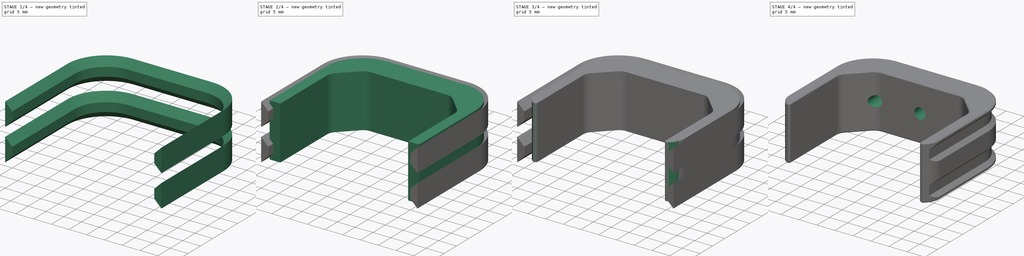
[diagram: build sequence overview — one tinted view per stage of 4, left to right]
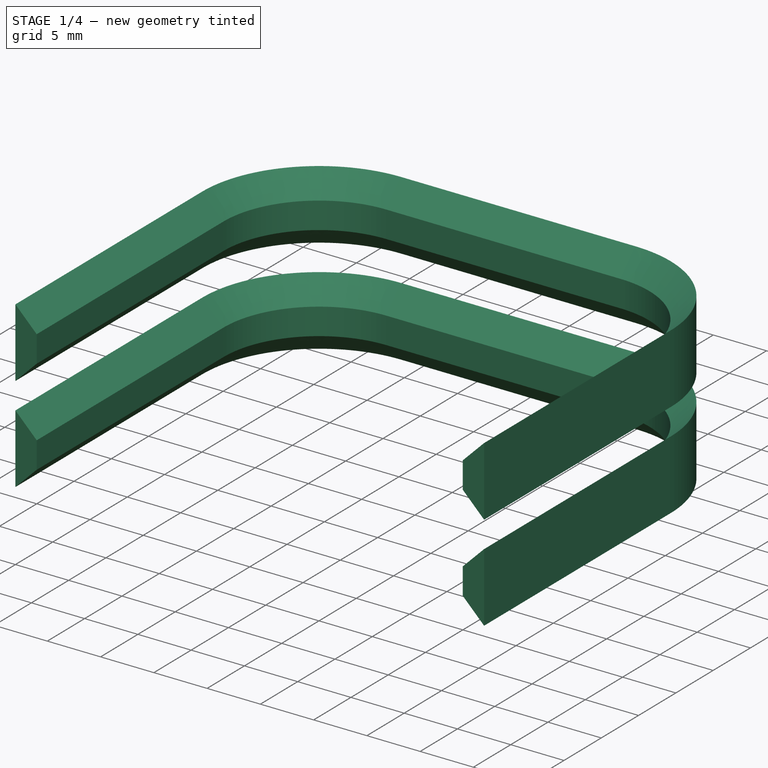
[diagram: stage 1 of 4 — iso view after this stage's code; geometry added in this stage tinted green]
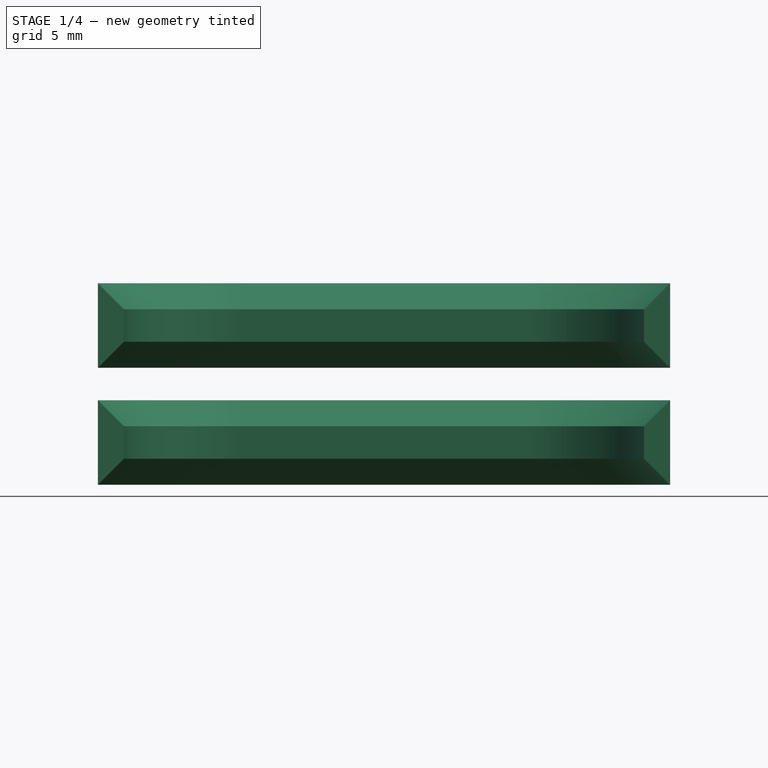
[diagram: stage 1 of 4 — front view after this stage's code; geometry added in this stage tinted green]
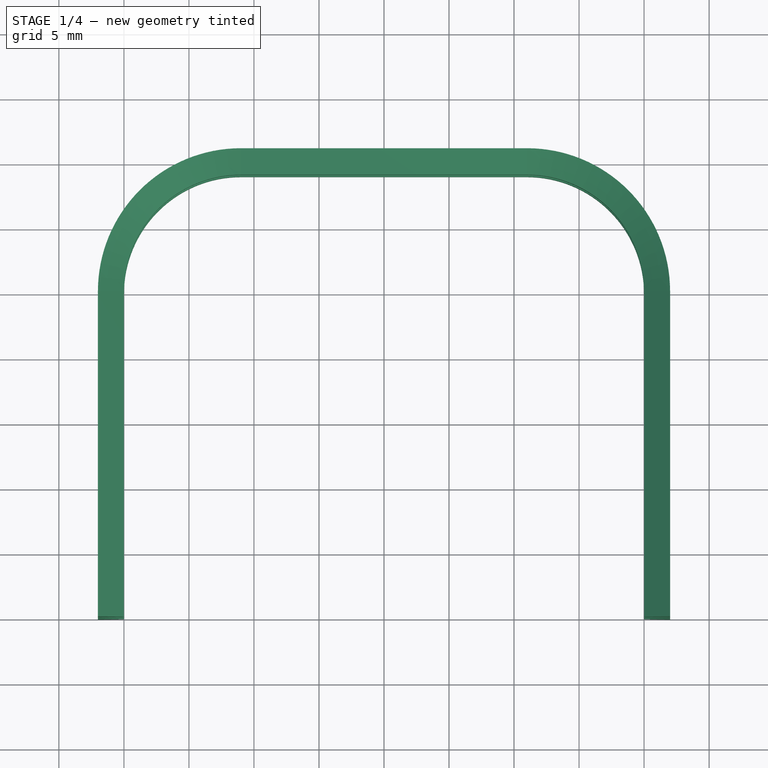
[diagram: stage 1 of 4 — top view after this stage's code; geometry added in this stage tinted green]
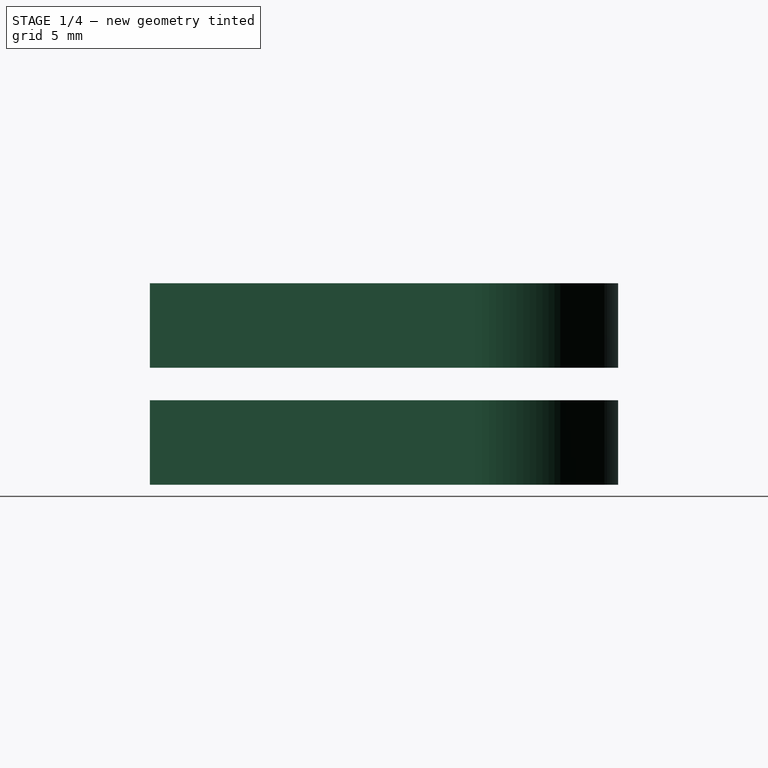
[diagram: stage 1 of 4 — right view after this stage's code; geometry added in this stage tinted green]
FCSTD DOCUMENT  (FreeCAD 0.16R6707 (Git))
Label: lalitaMotorX_cables
License: CreativeCommons Attribution-NonCommercial-ShareAlike
LicenseURL: http://creativecommons.org/licenses/by-nc-sa/4.0/
objects: Sketcher::SketchObject×4, PartDesign::Fillet×4, PartDesign::Chamfer×2, PartDesign::Pad×1, Part::Sweep×1, Part::FeaturePython×1, Part::MultiFuse×1, Part::Cut×1, PartDesign::Pocket×1
note: 18 computed .brp shape members not serialized (recipe doc carries the construction recipe); baked Part::Feature solids carry a one-line shape summary decoded from their .brp

FEATURE [Sketcher::SketchObject] Sketch001
  sketch-geometry (5):
    g0: LineSegment StartX=-21 StartY=-10 StartZ=0 EndX=-21 EndY=15 EndZ=0
    g1: LineSegment StartX=-11 StartY=25 StartZ=0 EndX=11 EndY=25 EndZ=0
    g2: LineSegment StartX=21 StartY=15 StartZ=0 EndX=21 EndY=-10 EndZ=0
    g3: ArcOfCircle CenterX=-11 CenterY=15 CenterZ=0 NormalX=0 NormalY=0 NormalZ=1 Radius=10 StartAngle=1.5708 EndAngle=3.14159
    g4: ArcOfCircle CenterX=11 CenterY=15 CenterZ=0 NormalX=0 NormalY=0 NormalZ=1 Radius=10 StartAngle=7.65228e-07 EndAngle=1.5708
  constraints (17):
    c: Vertical(g0)
    c: Horizontal(g1)
    c: Vertical(g2)
    c: Coincident(g3,g0)
    c: Coincident(g3,g1)
    c: Coincident(g4,g1)
    c: Coincident(g4,g2)
    c: Tangent(g0,g3)
    c: Tangent(g3,g1)
    c: Tangent(g1,g4)
    c: Tangent(g4,g2)
    c: Symmetric(g3,g4,g-2)
    c: Radius(g3) = 10
    c: DistanceY(g-1,g1) = 25
    c: DistanceX(g0,g-1) = 21
    c: Symmetric(g0,g2,g-2)
    c: DistanceY(g2,g-1) = 10
FEATURE [Sketcher::SketchObject] Sketch002
  Placement = pos=(0,-10,0) rot=(1,0,0;1.5708rad)
  sketch-geometry (4):
    g0: LineSegment StartX=22 StartY=3.25 StartZ=0 EndX=22 EndY=-3.25 EndZ=0
    g1: LineSegment StartX=22 StartY=-3.25 StartZ=0 EndX=20 EndY=-1.25 EndZ=0
    g2: LineSegment StartX=20 StartY=-1.25 StartZ=0 EndX=20 EndY=1.25 EndZ=0
    g3: LineSegment StartX=20 StartY=1.25 StartZ=0 EndX=22 EndY=3.25 EndZ=0
  constraints (12):
    c: Vertical(g0)
    c: Coincident(g0,g1)
    c: Coincident(g1,g2)
    c: Vertical(g2)
    c: Coincident(g2,g3)
    c: Coincident(g3,g0)
    c: Symmetric(g1,g2,g-1)
    c: Perpendicular(g3,g1)
    c: Symmetric(g0,g0,g-1)
    c: DistanceY(g2,g2) = 2.5
    c: DistanceX(g2,g0) = 2
    c: DistanceX(g-1,g1) = 20
FEATURE [Part::Sweep] Sweep
  Frenet = false
  Placement = pos=(0,0,3) rot=(0,0,1;0rad)
  Sections = -> [Sketch002]
  Solid = true
  Spine = -> Sketch001 [Edge5,Edge4,Edge3,Edge2,Edge1]
  Transition = 1
FEATURE [Part::FeaturePython] Clone  label="Clone of Sweep"  # Draft clone (typed FeaturePython)
  Objects = -> [Sweep]
  Placement = pos=(0,0,12) rot=(0,0,1;0rad)
  Scale = (1,1,1)
FEATURE [Part::MultiFuse] Fusion
  Shapes = -> [Clone,Sweep]
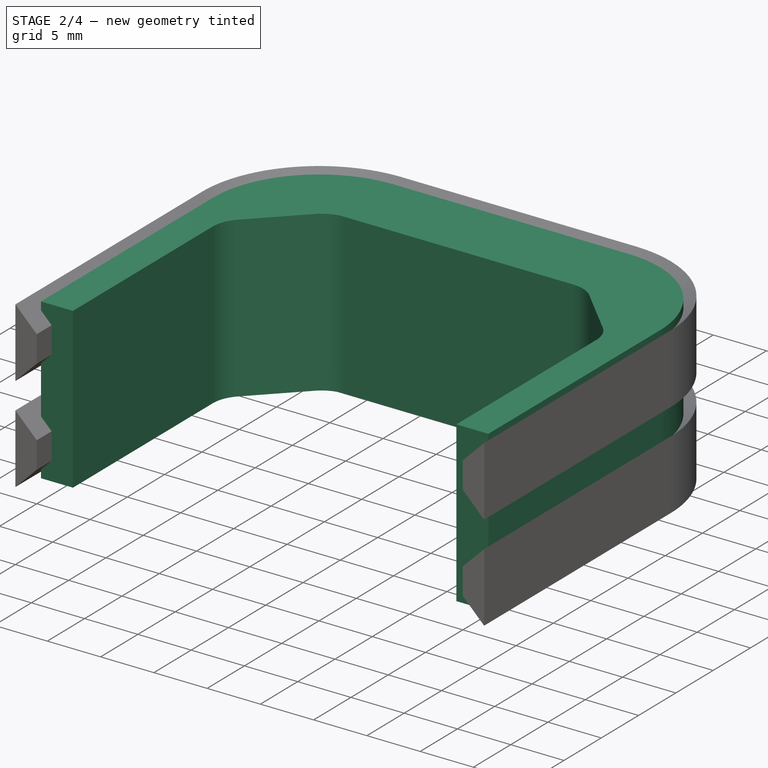
[diagram: stage 2 of 4 — iso view after this stage's code; geometry added in this stage tinted green]
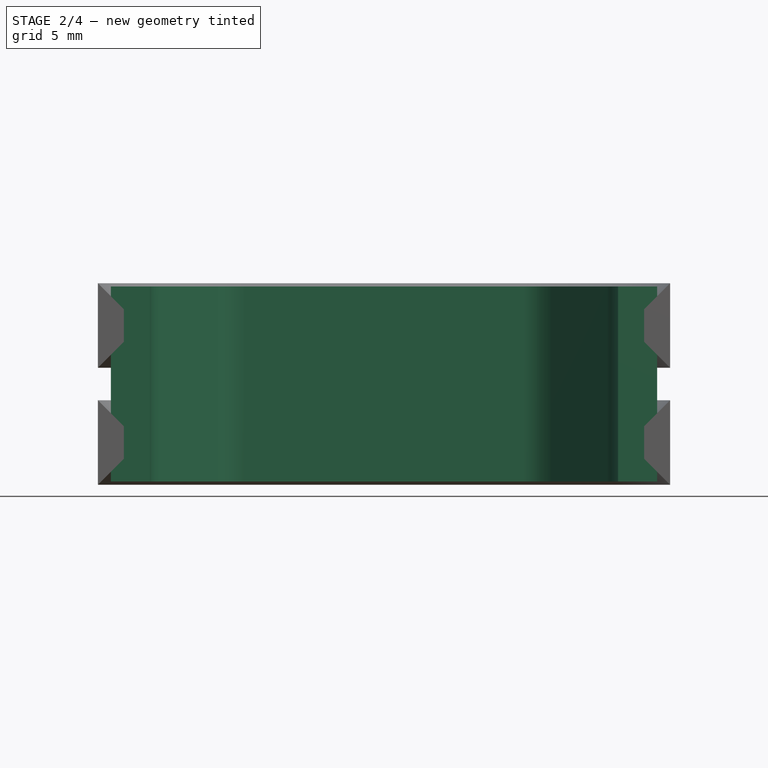
[diagram: stage 2 of 4 — front view after this stage's code; geometry added in this stage tinted green]
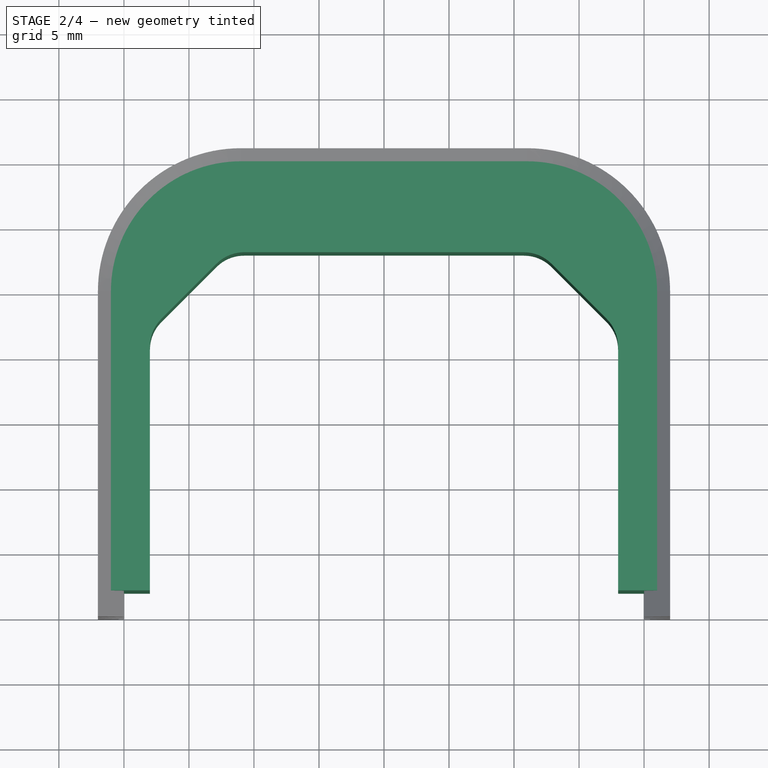
[diagram: stage 2 of 4 — top view after this stage's code; geometry added in this stage tinted green]
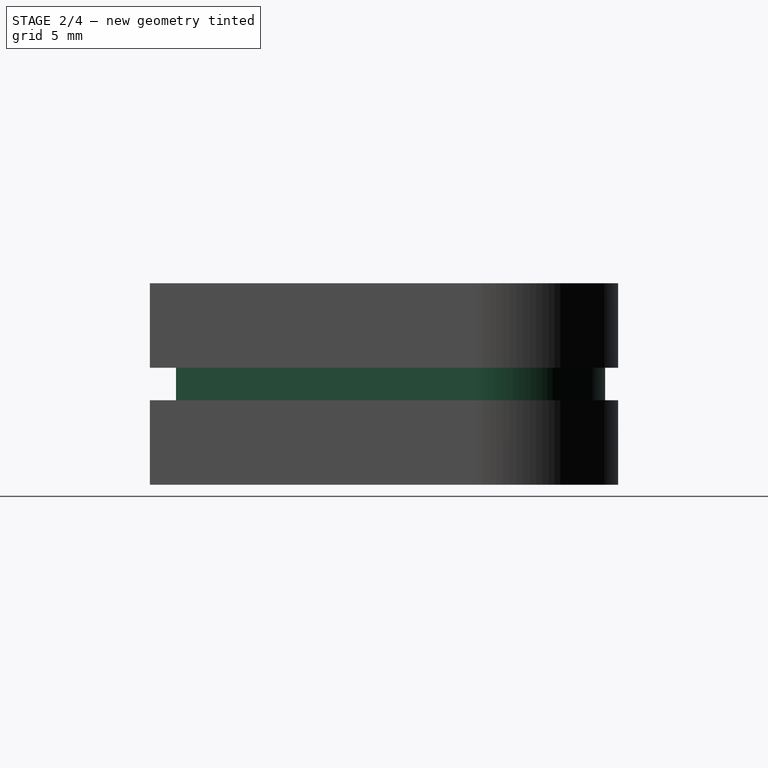
[diagram: stage 2 of 4 — right view after this stage's code; geometry added in this stage tinted green]
FEATURE [Sketcher::SketchObject] Sketch
  sketch-geometry (10):
    g0: LineSegment StartX=-18 StartY=-8 StartZ=0 EndX=-18 EndY=12 EndZ=0
    g1: LineSegment StartX=-18 StartY=12 StartZ=0 EndX=-12 EndY=18 EndZ=0
    g2: LineSegment StartX=-12 StartY=18 StartZ=0 EndX=12 EndY=18 EndZ=0
    g3: LineSegment StartX=12 StartY=18 StartZ=0 EndX=18 EndY=12 EndZ=0
    g4: LineSegment StartX=18 StartY=12 StartZ=0 EndX=18 EndY=-8 EndZ=0
    g5: LineSegment StartX=18 StartY=-8 StartZ=0 EndX=21 EndY=-8 EndZ=0
    g6: LineSegment StartX=21 StartY=-8 StartZ=0 EndX=21 EndY=25 EndZ=0
    g7: LineSegment StartX=21 StartY=25 StartZ=0 EndX=-21 EndY=25 EndZ=0
    g8: LineSegment StartX=-21 StartY=25 StartZ=0 EndX=-21 EndY=-8 EndZ=0
    g9: LineSegment StartX=-21 StartY=-8 StartZ=0 EndX=-18 EndY=-8 EndZ=0
  constraints (29):
    c: Vertical(g0)
    c: Coincident(g0,g1)
    c: Coincident(g1,g2)
    c: Horizontal(g2)
    c: Coincident(g2,g3)
    c: Coincident(g3,g4)
    c: Vertical(g4)
    c: Coincident(g4,g5)
    c: Horizontal(g5)
    c: Coincident(g5,g6)
    c: Vertical(g6)
    c: Coincident(g6,g7)
    c: Horizontal(g7)
    c: Coincident(g7,g8)
    c: Vertical(g8)
    c: Coincident(g8,g9)
    c: Coincident(g9,g0)
    c: Horizontal(g9)
    c: Symmetric(g0,g4,g-2)
    c: Symmetric(g7,g6,g-2)
    c: Symmetric(g1,g2,g-2)
    c: Symmetric(g0,g3,g-2)
    c: DistanceX(g0,g4) = 36
    c: DistanceX(g9,g9) = 3
    c: DistanceY(g-1,g0) = 12
    c: Perpendicular(g3,g1)
    c: DistanceX(g2,g2) = 24
    c: DistanceY(g0,g-1) = 8
    c: DistanceY(g1,g7) = 7
FEATURE [PartDesign::Pad] Pad
  Length = 15
  Length2 = 100
  Sketch = -> Sketch
  Type = 0
FEATURE [PartDesign::Fillet] Fillet
  Base = -> Pad [Edge23,Edge20]
  Radius = 10
FEATURE [PartDesign::Fillet] Fillet001
  Base = -> Fillet [Edge34,Edge36,Edge32,Edge30]
  Radius = 3
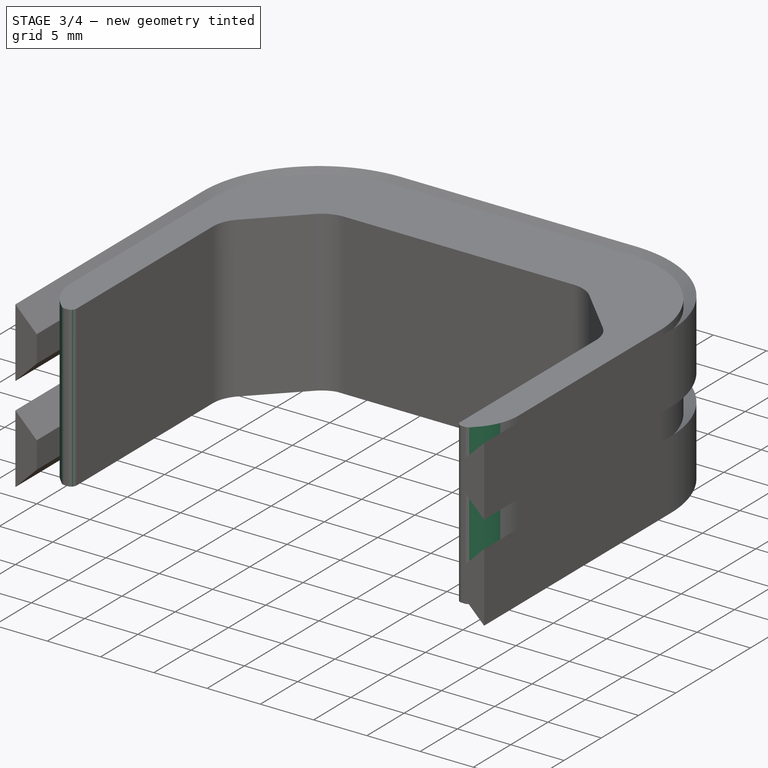
[diagram: stage 3 of 4 — iso view after this stage's code; geometry added in this stage tinted green]
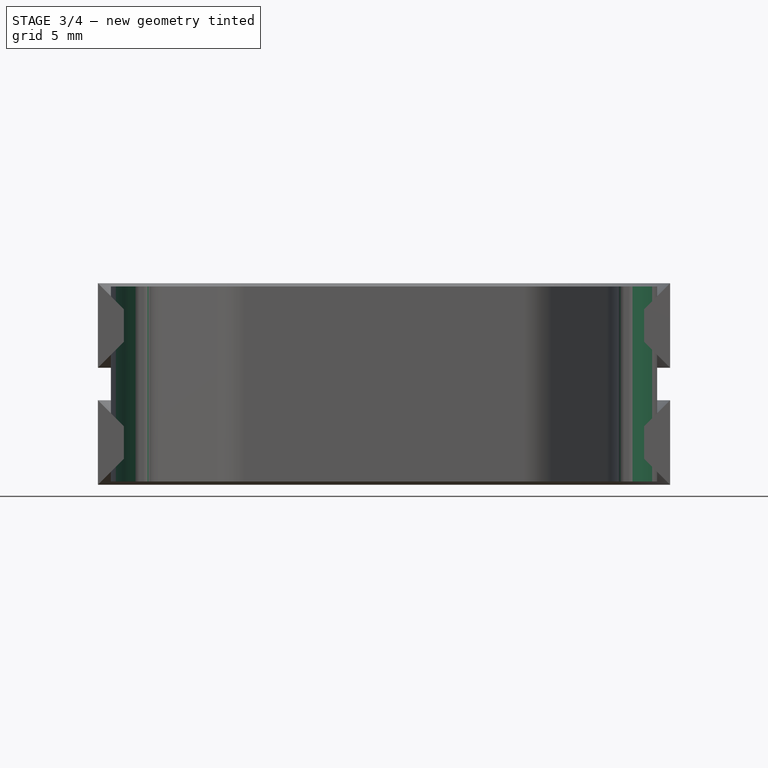
[diagram: stage 3 of 4 — front view after this stage's code; geometry added in this stage tinted green]
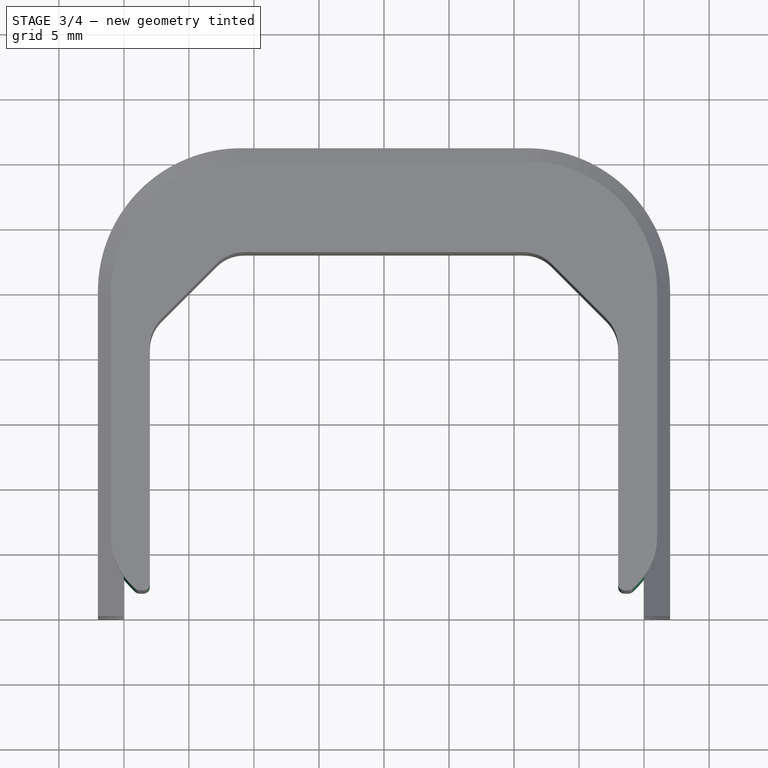
[diagram: stage 3 of 4 — top view after this stage's code; geometry added in this stage tinted green]
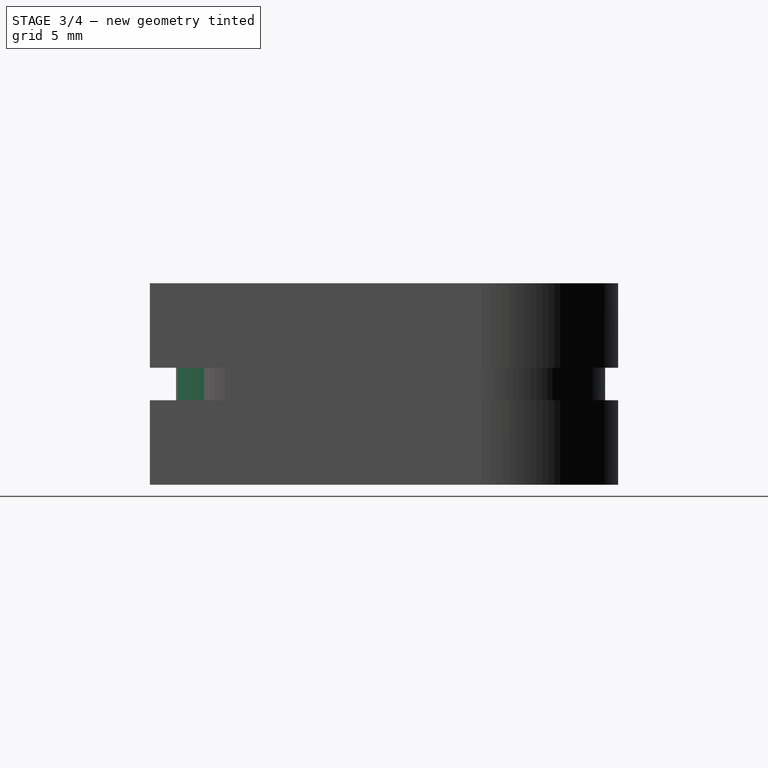
[diagram: stage 3 of 4 — right view after this stage's code; geometry added in this stage tinted green]
FEATURE [PartDesign::Chamfer] Chamfer
  Base = -> Fillet001 [Edge42,Edge22]
  Size = 2
FEATURE [PartDesign::Fillet] Fillet002
  Base = -> Chamfer [Edge46,Edge50,Edge19,Edge20]
  Radius = 0.5
FEATURE [PartDesign::Fillet] Fillet003
  Base = -> Fillet002 [Edge52,Edge32]
  Radius = 5
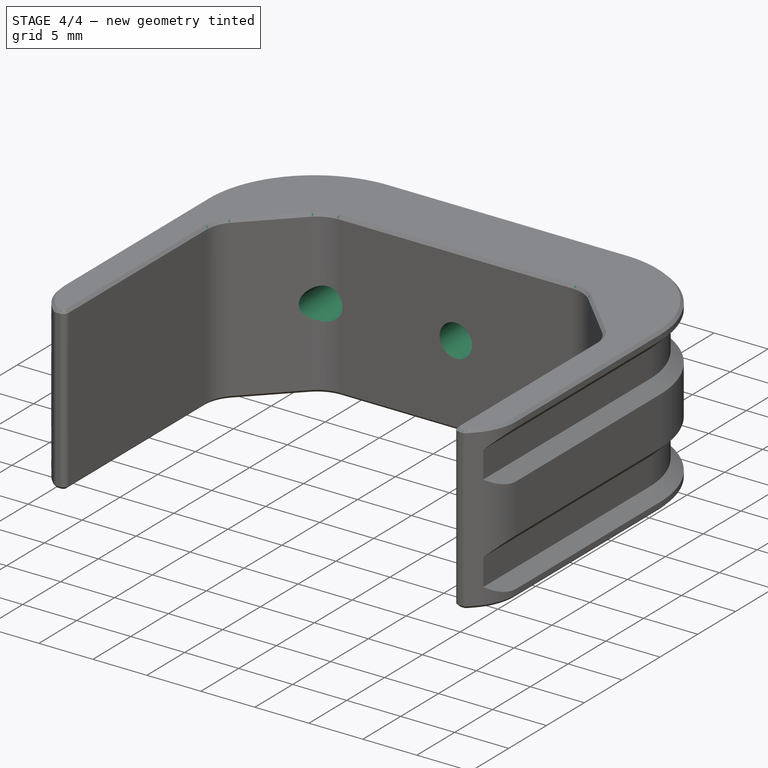
[diagram: stage 4 of 4 — iso view after this stage's code; geometry added in this stage tinted green]
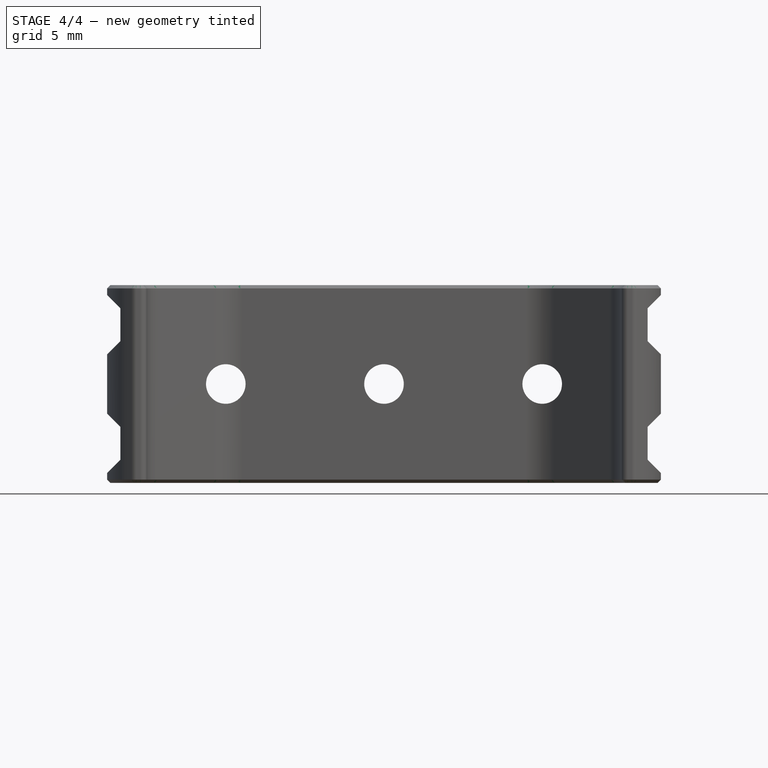
[diagram: stage 4 of 4 — front view after this stage's code; geometry added in this stage tinted green]
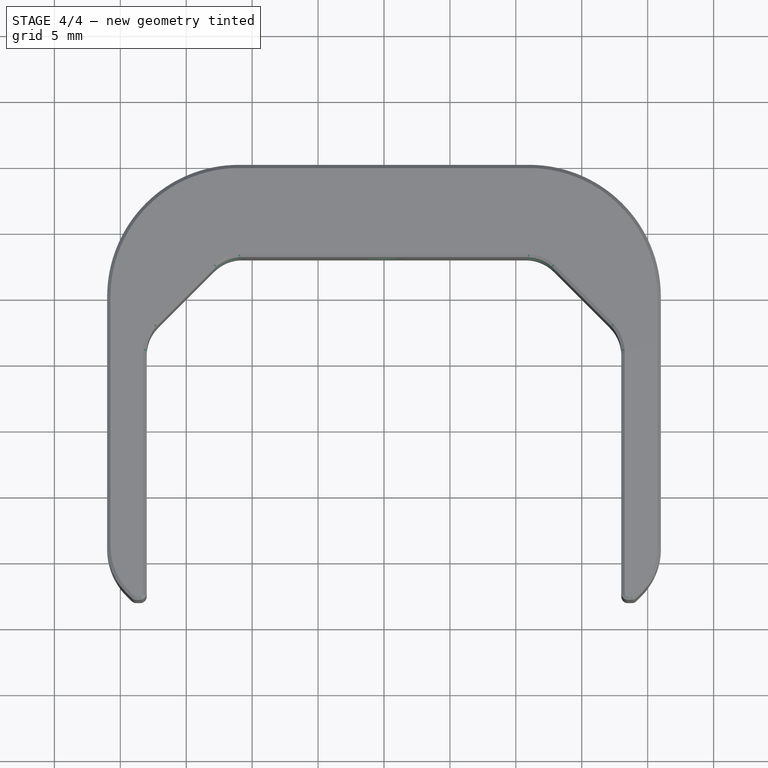
[diagram: stage 4 of 4 — top view after this stage's code; geometry added in this stage tinted green]
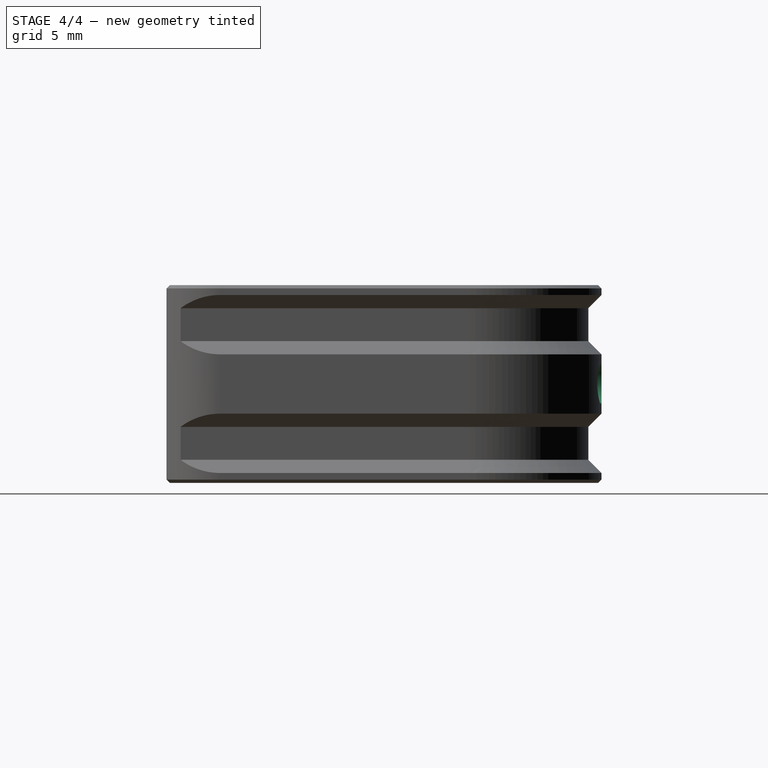
[diagram: stage 4 of 4 — right view after this stage's code; geometry added in this stage tinted green]
FEATURE [PartDesign::Chamfer] Chamfer001
  Base = -> Fillet003 [Edge27,Edge29,Edge31,Edge33,Edge35,Edge37,Edge39,Edge41,Edge43,Edge45,Edge47,Edge49,Edge51,Edge53,Edge55,Edge57,Edge59,Edge61,Edge63,Edge65,Edge67,Edge69,Edge71,Edge72,Edge1,Edge2,Edge3,Edge4,Edge5,Edge6,Edge7,Edge8,Edge9,Edge10,Edge11,Edge12,Edge13,Edge14,Edge15,Edge16,+8 more]
  Size = 0.25
FEATURE [Part::Cut] Cut
  Base = -> Chamfer001
  Tool = -> Fusion
FEATURE [Sketcher::SketchObject] Sketch003
  Placement = pos=(0,25,0) rot=(0,0.707107,0.707107;3.14159rad)
  Support = -> Cut [Face112]
  sketch-geometry (4):
    g0: Circle CenterX=-12 CenterY=7.5 CenterZ=0 NormalX=0 NormalY=0 NormalZ=1 Radius=1.5
    g1: Circle CenterX=0 CenterY=7.5 CenterZ=0 NormalX=0 NormalY=0 NormalZ=1 Radius=1.5
    g2: Circle CenterX=12 CenterY=7.5 CenterZ=0 NormalX=0 NormalY=0 NormalZ=1 Radius=1.5
    g3: LineSegment [constr] StartX=-12 StartY=7.5 StartZ=0 EndX=0 EndY=7.5 EndZ=0
  constraints (10):
    c: PointOnObject(g1,g-2)
    c: Coincident(g3,g0)
    c: Coincident(g3,g1)
    c: Horizontal(g3)
    c: Symmetric(g0,g2,g-2)
    c: DistanceX(g3,g3) = 12
    c: Radius(g0) = 1.5
    c: Equal(g0,g1)
    c: Equal(g0,g2)
    c: DistanceY(g-1,g1) = 7.5
FEATURE [PartDesign::Pocket] Pocket
  Length = 5
  Sketch = -> Sketch003
  Type = 1
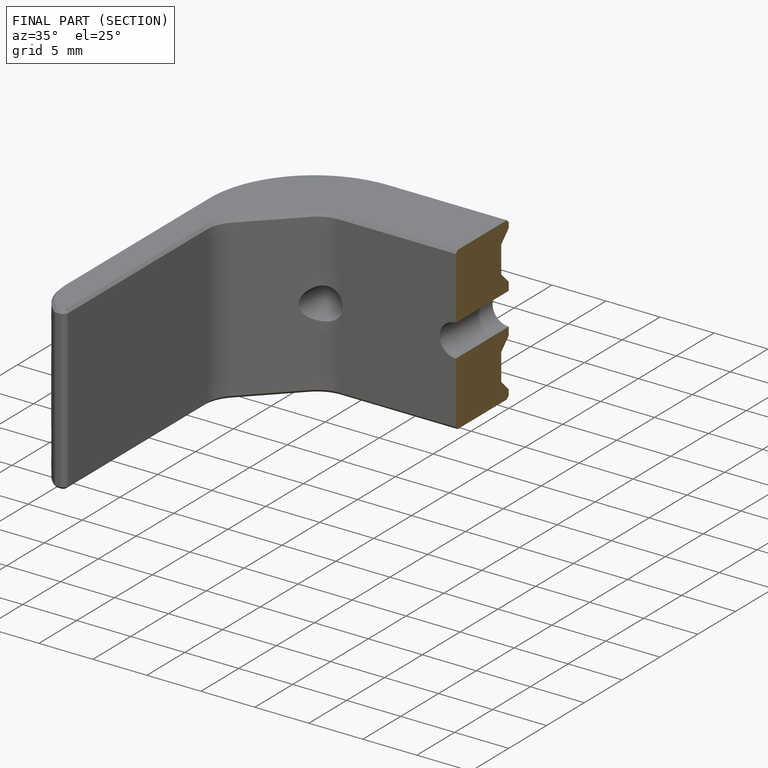
[diagram: finished part — half-section view (interior)]
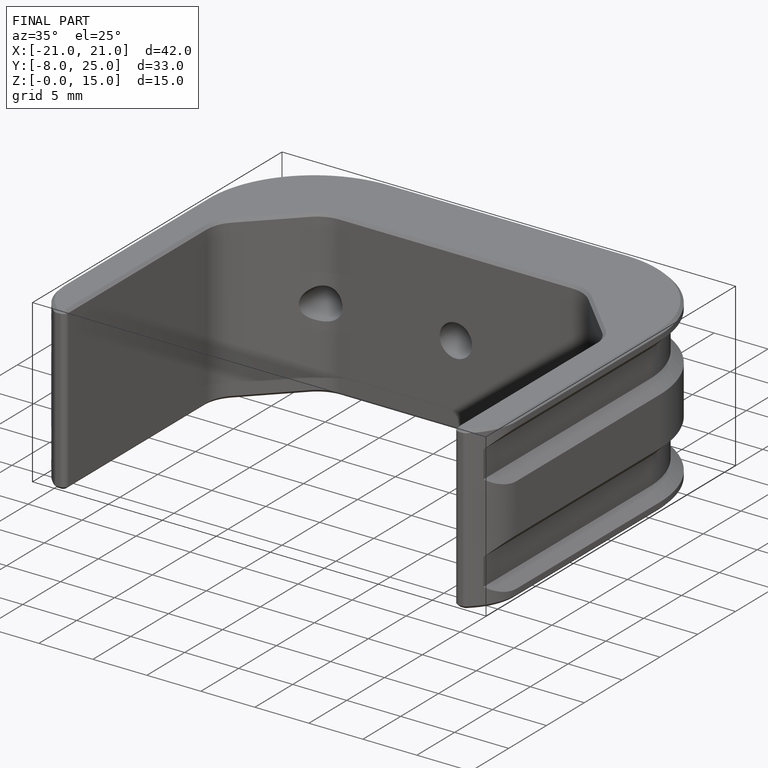
[diagram: finished part — iso view with bounding-box wireframe]
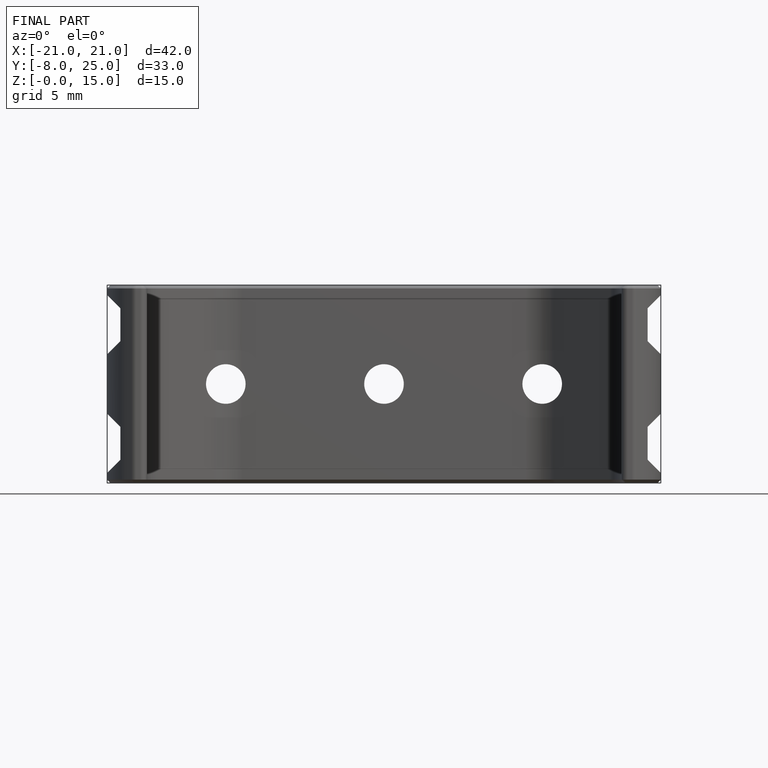
[diagram: finished part — front view with bounding-box wireframe]
